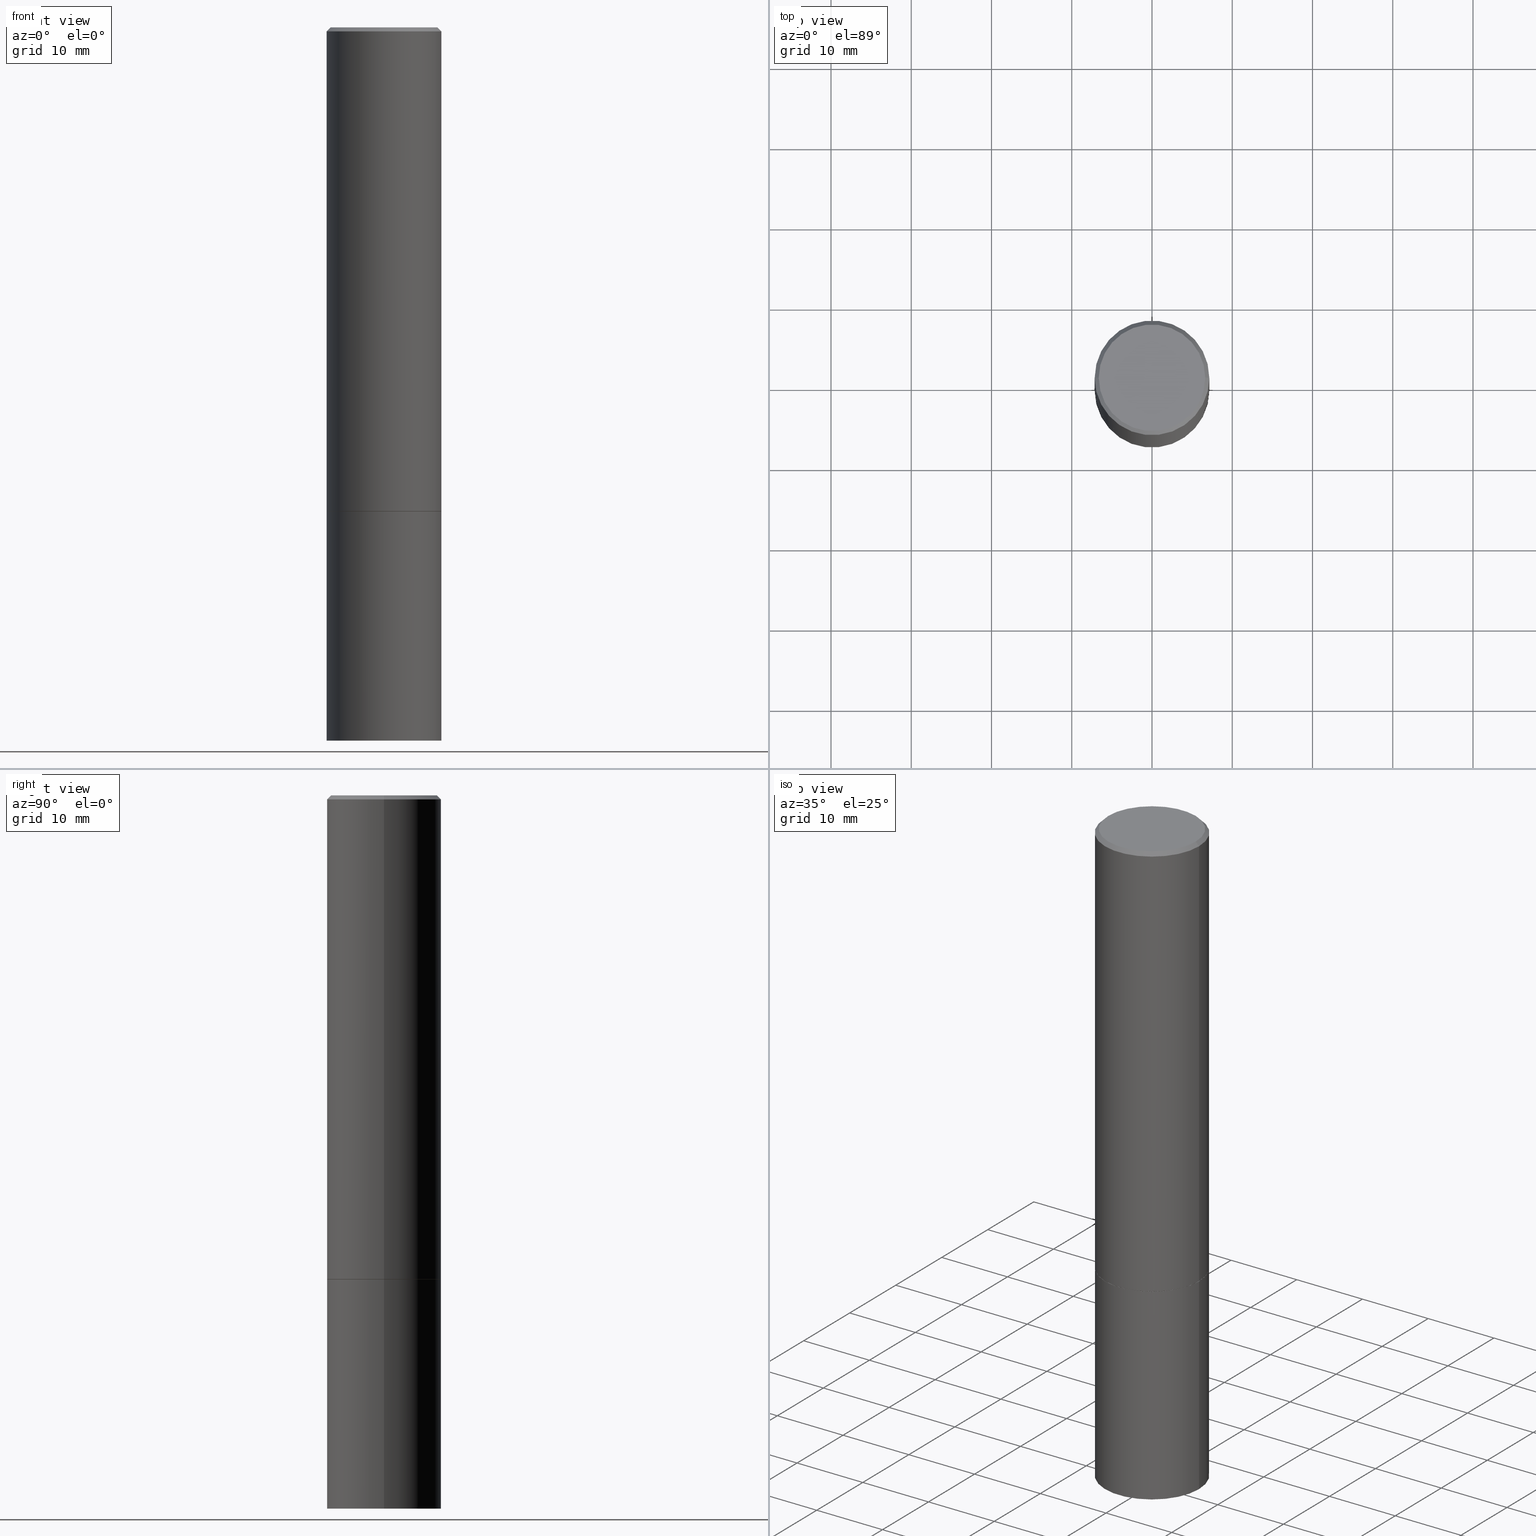
[diagram: canonical four-view strip — front | top / right | iso, engineering-drawing reading convention]
A machine part, canonical four-view strip (front | top / right | iso — engineering-drawing reading convention). The complete STEP part file that produces these views, byte-faithful:
ISO-10303-21;
HEADER;
FILE_DESCRIPTION (( 'STEP AP203' ),
    '1' );
FILE_NAME ('36436.STEP',
    '2024-02-27T19:25:09',
    ( '' ),
    ( '' ),
    'SwSTEP 2.0',
    'SolidWorks 2023',
    '' );
FILE_SCHEMA (( 'CONFIG_CONTROL_DESIGN' ));
ENDSEC;

DATA;
#1 = EDGE_CURVE ( 'NONE', #129, #296, #18, .T. ) ;
#2 = DIRECTION ( 'NONE',  ( -2.445468806185136597E-29, 3.491481338843145583E-15, 1.000000000000000000 ) ) ;
#3 = PERSON_AND_ORGANIZATION_ROLE ( 'creator' ) ;
#4 = DIMENSIONAL_EXPONENTS ( 1.000000000000000000, 0.000000000000000000, 0.000000000000000000, 0.000000000000000000, 0.000000000000000000, 0.000000000000000000, 0.000000000000000000 ) ;
#5 = DIRECTION ( 'NONE',  ( 1.000000000000000000, -6.982962677686268288E-15, 0.000000000000000000 ) ) ;
#6 = DIRECTION ( 'NONE',  ( 1.000000000000000000, -6.982962677686269866E-15, 0.000000000000000000 ) ) ;
#7 = APPROVAL_ROLE ( '' ) ;
#8 = LOCAL_TIME ( 14, 25, 9.000000000000000000, #352 ) ;
#9 = AXIS2_PLACEMENT_3D ( 'NONE', #343, #88, #317 ) ;
#10 = ORIENTED_EDGE ( 'NONE', *, *, #96, .T. ) ;
#11 = CONICAL_SURFACE ( 'NONE', #144, 0.2812499999999996114, 0.7853981633974471688 ) ;
#12 = ORIENTED_EDGE ( 'NONE', *, *, #286, .F. ) ;
#13 = EDGE_CURVE ( 'NONE', #333, #43, #327, .T. ) ;
#14 = VERTEX_POINT ( 'NONE', #52 ) ;
#15 = PERSON_AND_ORGANIZATION_ROLE ( 'creator' ) ;
#16 = DIRECTION ( 'NONE',  ( 1.000000000000000000, -6.982962677686269866E-15, 0.000000000000000000 ) ) ;
#17 = CARTESIAN_POINT ( 'NONE',  ( 1.963958253099348104E-15, 0.2812499999999877875, -3.500000000000000888 ) ) ;
#18 = CIRCLE ( 'NONE', #288, 0.2812499999999996114 ) ;
#19 = PRODUCT_DEFINITION_FORMATION_WITH_SPECIFIED_SOURCE ( 'ANY', '', #168, .NOT_KNOWN. ) ;
#20 = DIRECTION ( 'NONE',  ( -2.445468806185136597E-29, 3.491481338843145583E-15, 1.000000000000000000 ) ) ;
#21 = CARTESIAN_POINT ( 'NONE',  ( 0.2812500000000000000, -1.418414293905027264E-14, -3.500000000000000000 ) ) ;
#22 = CYLINDRICAL_SURFACE ( 'NONE', #328, 0.2812500000000000000 ) ;
#23 = DIRECTION ( 'NONE',  ( 0.7071067811866320607, -2.468850131083142557E-15, 0.7071067811864629737 ) ) ;
#24 = ORIENTED_EDGE ( 'NONE', *, *, #192, .T. ) ;
#25 = DIRECTION ( 'NONE',  ( -1.000000000000000000, 6.982962677686268288E-15, 0.000000000000000000 ) ) ;
#26 = EDGE_LOOP ( 'NONE', ( #12, #324 ) ) ;
#27 = CALENDAR_DATE ( 2024, 27, 2 ) ;
#28 = PERSON_AND_ORGANIZATION ( #99, #172 ) ;
#29 = ADVANCED_FACE ( 'NONE', ( #161 ), #271, .T. ) ;
#30 = DIRECTION ( 'NONE',  ( 1.000000000000000000, -6.982962677686269866E-15, 0.000000000000000000 ) ) ;
#31 = COORDINATED_UNIVERSAL_TIME_OFFSET ( 5, 0, .BEHIND. ) ;
#32 = CARTESIAN_POINT ( 'NONE',  ( 5.807988414689697175E-29, -8.292268179752466962E-15, -2.374999999999999112 ) ) ;
#33 = VERTEX_POINT ( 'NONE', #21 ) ;
#34 = CARTESIAN_POINT ( 'NONE',  ( 8.559140821647976968E-29, -1.222018468595100934E-14, -3.500000000000000000 ) ) ;
#35 = ADVANCED_BREP_SHAPE_REPRESENTATION ( '36436', ( #107, #117, #87 ), #249 ) ;
#36 = VERTEX_POINT ( 'NONE', #135 ) ;
#37 = DIRECTION ( 'NONE',  ( 1.000000000000000000, -6.982962677686266711E-15, 4.876176775795935793E-29 ) ) ;
#38 = CARTESIAN_POINT ( 'NONE',  ( 0.2802499999999999991, -1.024924347017404425E-14, -2.374999999999999112 ) ) ;
#39 = CONICAL_SURFACE ( 'NONE', #265, 0.2812499999999996114, 0.7853981633974471688 ) ;
#40 = EDGE_LOOP ( 'NONE', ( #90, #182, #337, #230 ) ) ;
#41 = AXIS2_PLACEMENT_3D ( 'NONE', #262, #146, #37 ) ;
#42 = ADVANCED_FACE ( 'NONE', ( #243 ), #70, .T. ) ;
#43 = VERTEX_POINT ( 'NONE', #184 ) ;
#44 = DIRECTION ( 'NONE',  ( 1.000000000000000000, -6.982962677686266711E-15, 4.876176775795935793E-29 ) ) ;
#45 = PERSON_AND_ORGANIZATION ( #99, #172 ) ;
#46 = CARTESIAN_POINT ( 'NONE',  ( 4.890937612370292426E-31, -6.982962677686317493E-17, -0.02000000000000007674 ) ) ;
#47 = EDGE_LOOP ( 'NONE', ( #153, #73, #148, #97 ) ) ;
#48 = CIRCLE ( 'NONE', #9, 0.2812500000000000555 ) ;
#49 = EDGE_LOOP ( 'NONE', ( #105, #235 ) ) ;
#50 = ADVANCED_FACE ( 'NONE', ( #160 ), #39, .T. ) ;
#51 = DIRECTION ( 'NONE',  ( 1.000000000000000000, -6.982962677686266711E-15, 4.876176775795935793E-29 ) ) ;
#52 = CARTESIAN_POINT ( 'NONE',  ( 0.2802499999999999991, -1.024924347017404425E-14, -2.374999999999999112 ) ) ;
#53 = DIRECTION ( 'NONE',  ( -2.445468806185136597E-29, 3.491481338843145583E-15, 1.000000000000000000 ) ) ;
#54 = CARTESIAN_POINT ( 'NONE',  ( 0.2612499999999995937, -1.895824895283956809E-15, 1.300802449975685690E-29 ) ) ;
#55 = APPROVAL_PERSON_ORGANIZATION ( #125, #269, #234 ) ;
#56 = CARTESIAN_POINT ( 'NONE',  ( 1.824298999545534338E-15, 0.2612499999999995937, -9.121494997727705218E-16 ) ) ;
#57 = EDGE_CURVE ( 'NONE', #180, #100, #61, .T. ) ;
#58 = CC_DESIGN_PERSON_AND_ORGANIZATION_ASSIGNMENT ( #341, #15, ( #357 ) ) ;
#59 = CARTESIAN_POINT ( 'NONE',  ( 4.890937612370292426E-31, -6.982962677686317493E-17, -0.02000000000000007674 ) ) ;
#60 = DIRECTION ( 'NONE',  ( -2.445468806185136597E-29, 3.491481338843145583E-15, 1.000000000000000000 ) ) ;
#61 = CIRCLE ( 'NONE', #142, 0.2612499999999995937 ) ;
#62 = CONICAL_SURFACE ( 'NONE', #94, 0.2802499999999999991, 0.7853981633975678500 ) ;
#63 = DATE_AND_TIME ( #345, #66 ) ;
#64 = FACE_OUTER_BOUND ( 'NONE', #26, .T. ) ;
#65 = ADVANCED_FACE ( 'NONE', ( #285 ), #145, .T. ) ;
#66 = LOCAL_TIME ( 14, 25, 9.000000000000000000, #175 ) ;
#67 = DIRECTION ( 'NONE',  ( -2.445468806185136597E-29, 3.491481338843145583E-15, 1.000000000000000000 ) ) ;
#68 = ORIENTED_EDGE ( 'NONE', *, *, #244, .T. ) ;
#69 = EDGE_CURVE ( 'NONE', #333, #296, #84, .T. ) ;
#70 = CONICAL_SURFACE ( 'NONE', #131, 0.2802499999999999991, 0.7853981633975678500 ) ;
#71 = VECTOR ( 'NONE', #199, 39.37007874015748143 ) ;
#72 = CARTESIAN_POINT ( 'NONE',  ( 0.2812499999999996114, -1.999344688650103789E-15, -0.02000000000000007674 ) ) ;
#73 = ORIENTED_EDGE ( 'NONE', *, *, #69, .T. ) ;
#74 = PERSON_AND_ORGANIZATION ( #99, #172 ) ;
#75 = ORIENTED_EDGE ( 'NONE', *, *, #57, .F. ) ;
#76 = EDGE_CURVE ( 'NONE', #43, #333, #48, .T. ) ;
#77 = ORIENTED_EDGE ( 'NONE', *, *, #13, .T. ) ;
#78 = CARTESIAN_POINT ( 'NONE',  ( 5.805542945883512693E-29, -8.288776698413625533E-15, -2.373999999999999222 ) ) ;
#79 = ORIENTED_EDGE ( 'NONE', *, *, #123, .T. ) ;
#80 = CALENDAR_DATE ( 2024, 27, 2 ) ;
#81 = EDGE_CURVE ( 'NONE', #296, #129, #304, .T. ) ;
#82 = PLANE ( 'NONE',  #351 ) ;
#83 = CC_DESIGN_APPROVAL ( #196, ( #315 ) ) ;
#84 = LINE ( 'NONE', #254, #121 ) ;
#85 = CALENDAR_DATE ( 2024, 27, 2 ) ;
#86 = AXIS2_PLACEMENT_3D ( 'NONE', #344, #334, #51 ) ;
#87 = AXIS2_PLACEMENT_3D ( 'NONE', #176, #226, #326 ) ;
#88 = DIRECTION ( 'NONE',  ( -2.445468806185136597E-29, 3.491481338843145583E-15, 1.000000000000000000 ) ) ;
#89 = CARTESIAN_POINT ( 'NONE',  ( 0.2812499999999996114, -1.999344688650103789E-15, -0.02000000000000007674 ) ) ;
#90 = ORIENTED_EDGE ( 'NONE', *, *, #96, .F. ) ;
#91 = APPROVAL_STATUS ( 'not_yet_approved' ) ;
#92 = LINE ( 'NONE', #169, #71 ) ;
#93 = CARTESIAN_POINT ( 'NONE',  ( 0.2812500000000000000, -1.025622643285173184E-14, -2.374999999999999556 ) ) ;
#94 = AXIS2_PLACEMENT_3D ( 'NONE', #287, #67, #174 ) ;
#95 = ORIENTED_EDGE ( 'NONE', *, *, #267, .T. ) ;
#96 = EDGE_CURVE ( 'NONE', #36, #333, #195, .T. ) ;
#97 = ORIENTED_EDGE ( 'NONE', *, *, #150, .F. ) ;
#98 = LINE ( 'NONE', #72, #336 ) ;
#99 = PERSON ( 'UNSPECIFIED', 'UNSPECIFIED', 'UNSPECIFIED', ('UNSPECIFIED'), ('UNSPECIFIED'), ('UNSPECIFIED') ) ;
#100 = VERTEX_POINT ( 'NONE', #219 ) ;
#101 = PERSON_AND_ORGANIZATION_ROLE ( 'design_supplier' ) ;
#102 = CARTESIAN_POINT ( 'NONE',  ( -0.2812500000000000000, 1.998401444325281773E-15, -1.383450494134192269E-29 ) ) ;
#103 = EDGE_LOOP ( 'NONE', ( #331, #10, #319, #359 ) ) ;
#104 = ADVANCED_FACE ( 'NONE', ( #189 ), #167, .T. ) ;
#105 = ORIENTED_EDGE ( 'NONE', *, *, #267, .F. ) ;
#106 = DIRECTION ( 'NONE',  ( 1.000000000000000000, -6.982962677686265922E-15, 4.876176775795935793E-29 ) ) ;
#107 = MANIFOLD_SOLID_BREP ( 'Body-Move/Copy2[1]', #260 ) ;
#108 = CC_DESIGN_DATE_AND_TIME_ASSIGNMENT ( #63, #225, ( #315 ) ) ;
#109 = ORIENTED_EDGE ( 'NONE', *, *, #229, .T. ) ;
#110 = AXIS2_PLACEMENT_3D ( 'NONE', #59, #2, #5 ) ;
#111 = CC_DESIGN_APPROVAL ( #269, ( #357 ) ) ;
#112 = DIRECTION ( 'NONE',  ( -1.000000000000000000, 6.982962677686265922E-15, -4.876176775795935793E-29 ) ) ;
#113 = EDGE_LOOP ( 'NONE', ( #137, #349, #79, #339 ) ) ;
#114 = CARTESIAN_POINT ( 'NONE',  ( 5.807988414689698296E-29, -8.292268179752468540E-15, -2.374999999999999556 ) ) ;
#115 = DATE_TIME_ROLE ( 'creation_date' ) ;
#116 = PRODUCT_DEFINITION_SHAPE ( 'NONE', 'NONE',  #357 ) ;
#117 = MANIFOLD_SOLID_BREP ( 'Body-Move/Copy2[2]', #231 ) ;
#118 = CARTESIAN_POINT ( 'NONE',  ( -0.2802499999999999991, -6.300972162784786987E-15, -2.374999999999999112 ) ) ;
#119 = DIRECTION ( 'NONE',  ( 1.000000000000000000, -6.982962677686266711E-15, 4.876176775795935793E-29 ) ) ;
#120 = SHAPE_DEFINITION_REPRESENTATION ( #116, #35 ) ;
#121 = VECTOR ( 'NONE', #251, 39.37007874015748143 ) ;
#122 = AXIS2_PLACEMENT_3D ( 'NONE', #114, #342, #185 ) ;
#123 = EDGE_CURVE ( 'NONE', #100, #296, #268, .T. ) ;
#124 = AXIS2_PLACEMENT_3D ( 'NONE', #257, #281, #282 ) ;
#125 = PERSON_AND_ORGANIZATION ( #99, #172 ) ;
#126 = LOCAL_TIME ( 14, 25, 9.000000000000000000, #297 ) ;
#127 = ORIENTED_EDGE ( 'NONE', *, *, #69, .F. ) ;
#128 = PERSON_AND_ORGANIZATION ( #99, #172 ) ;
#129 = VERTEX_POINT ( 'NONE', #89 ) ;
#130 = PLANE ( 'NONE',  #183 ) ;
#131 = AXIS2_PLACEMENT_3D ( 'NONE', #361, #274, #212 ) ;
#132 = LOCAL_TIME ( 14, 25, 9.000000000000000000, #310 ) ;
#133 = ADVANCED_FACE ( 'NONE', ( #64 ), #316, .F. ) ;
#134 = CARTESIAN_POINT ( 'NONE',  ( 5.807988414689697175E-29, -8.292268179752466962E-15, -2.374999999999999112 ) ) ;
#135 = CARTESIAN_POINT ( 'NONE',  ( -0.2802499999999999991, -6.295673708436564585E-15, -2.374999999999999112 ) ) ;
#136 = UNCERTAINTY_MEASURE_WITH_UNIT (LENGTH_MEASURE( 1.000000000000000082E-05 ), #323, 'distance_accuracy_value', 'NONE');
#137 = ORIENTED_EDGE ( 'NONE', *, *, #147, .F. ) ;
#138 = DIRECTION ( 'NONE',  ( 2.438088387897960049E-29, -3.491481338843145188E-15, -1.000000000000000000 ) ) ;
#139 = CARTESIAN_POINT ( 'NONE',  ( 4.890937612370292426E-31, -6.982962677686317493E-17, -0.02000000000000007674 ) ) ;
#140 = CC_DESIGN_APPROVAL ( #280, ( #19 ) ) ;
#141 = DATE_AND_TIME ( #27, #132 ) ;
#142 = AXIS2_PLACEMENT_3D ( 'NONE', #238, #60, #119 ) ;
#143 = APPROVAL_ROLE ( '' ) ;
#144 = AXIS2_PLACEMENT_3D ( 'NONE', #216, #354, #25 ) ;
#145 = CYLINDRICAL_SURFACE ( 'NONE', #124, 0.2812499999999998335 ) ;
#146 = DIRECTION ( 'NONE',  ( -2.445468806185136597E-29, 3.491481338843145583E-15, 1.000000000000000000 ) ) ;
#147 = EDGE_CURVE ( 'NONE', #180, #129, #98, .T. ) ;
#148 = ORIENTED_EDGE ( 'NONE', *, *, #1, .F. ) ;
#149 =( NAMED_UNIT ( * ) PLANE_ANGLE_UNIT ( ) SI_UNIT ( $, .RADIAN. ) );
#150 = EDGE_CURVE ( 'NONE', #43, #129, #277, .T. ) ;
#151 = CIRCLE ( 'NONE', #295, 0.2812500000000000000 ) ;
#152 = APPROVAL_PERSON_ORGANIZATION ( #259, #196, #7 ) ;
#153 = ORIENTED_EDGE ( 'NONE', *, *, #76, .T. ) ;
#154 = FACE_OUTER_BOUND ( 'NONE', #291, .T. ) ;
#155 = DIRECTION ( 'NONE',  ( -2.445468806185136597E-29, 3.491481338843145583E-15, 1.000000000000000000 ) ) ;
#156 = DESIGN_CONTEXT ( 'detailed design', #197, 'design' ) ;
#157 = DIRECTION ( 'NONE',  ( 1.000000000000000000, -6.982962677686269077E-15, 0.000000000000000000 ) ) ;
#158 = ORIENTED_EDGE ( 'NONE', *, *, #81, .F. ) ;
#159 = CARTESIAN_POINT ( 'NONE',  ( -0.2812499999999996114, 1.894128626322396848E-15, -0.02000000000000007674 ) ) ;
#160 = FACE_OUTER_BOUND ( 'NONE', #329, .T. ) ;
#161 = FACE_OUTER_BOUND ( 'NONE', #49, .T. ) ;
#162 = DIRECTION ( 'NONE',  ( -0.7071067811866320607, 7.493145998870660238E-15, 0.7071067811864629737 ) ) ;
#163 = CIRCLE ( 'NONE', #122, 0.2812500000000000000 ) ;
#164 = DIRECTION ( 'NONE',  ( -2.445468806185136597E-29, 3.491481338843145583E-15, 1.000000000000000000 ) ) ;
#165 = DIRECTION ( 'NONE',  ( 2.438088387897960049E-29, -3.491481338843145188E-15, -1.000000000000000000 ) ) ;
#166 = CYLINDRICAL_SURFACE ( 'NONE', #86, 0.2812499999999998335 ) ;
#167 = CYLINDRICAL_SURFACE ( 'NONE', #350, 0.2812500000000000000 ) ;
#168 = PRODUCT ( '36436', '36436', '', ( #261 ) ) ;
#169 = CARTESIAN_POINT ( 'NONE',  ( 0.2812500000000000000, -1.963958253099262512E-15, 1.371424718192607012E-29 ) ) ;
#170 = ADVANCED_FACE ( 'NONE', ( #366 ), #166, .T. ) ;
#171 = ORIENTED_EDGE ( 'NONE', *, *, #229, .F. ) ;
#172 = ORGANIZATION ( 'UNSPECIFIED', 'UNSPECIFIED', '' ) ;
#173 = APPLICATION_PROTOCOL_DEFINITION ( 'international standard', 'config_control_design', 1994, #318 ) ;
#174 = DIRECTION ( 'NONE',  ( 1.000000000000000000, -6.982962677686269077E-15, 0.000000000000000000 ) ) ;
#175 = COORDINATED_UNIVERSAL_TIME_OFFSET ( 5, 0, .BEHIND. ) ;
#176 = CARTESIAN_POINT ( 'NONE',  ( 0.000000000000000000, 0.000000000000000000, 0.000000000000000000 ) ) ;
#177 = ORIENTED_EDGE ( 'NONE', *, *, #123, .F. ) ;
#178 = DIRECTION ( 'NONE',  ( 0.7071067811865466846, -7.319954787623252890E-15, -0.7071067811865483499 ) ) ;
#179 = FACE_OUTER_BOUND ( 'NONE', #306, .T. ) ;
#180 = VERTEX_POINT ( 'NONE', #54 ) ;
#181 = PERSON_AND_ORGANIZATION_ROLE ( 'classification_officer' ) ;
#182 = ORIENTED_EDGE ( 'NONE', *, *, #278, .T. ) ;
#183 = AXIS2_PLACEMENT_3D ( 'NONE', #308, #138, #112 ) ;
#184 = CARTESIAN_POINT ( 'NONE',  ( 0.2812500000000000555, -1.025273495151288883E-14, -2.373999999999999222 ) ) ;
#185 = DIRECTION ( 'NONE',  ( 1.000000000000000000, -6.982962677686269866E-15, 0.000000000000000000 ) ) ;
#186 = DIRECTION ( 'NONE',  ( 1.000000000000000000, -6.982962677686268288E-15, 0.000000000000000000 ) ) ;
#187 = DIRECTION ( 'NONE',  ( 1.000000000000000000, -6.982962677686268288E-15, 0.000000000000000000 ) ) ;
#188 = DIRECTION ( 'NONE',  ( -2.445468806185136877E-29, 3.491481338843145188E-15, 1.000000000000000000 ) ) ;
#189 = FACE_OUTER_BOUND ( 'NONE', #299, .T. ) ;
#190 = AXIS2_PLACEMENT_3D ( 'NONE', #134, #20, #303 ) ;
#191 = VECTOR ( 'NONE', #23, 39.37007874015748143 ) ;
#192 = EDGE_CURVE ( 'NONE', #264, #33, #151, .T. ) ;
#193 = AXIS2_PLACEMENT_3D ( 'NONE', #34, #203, #30 ) ;
#194 = DIRECTION ( 'NONE',  ( -0.7071067811865466846, 2.468850131082247989E-15, -0.7071067811865483499 ) ) ;
#195 = LINE ( 'NONE', #118, #221 ) ;
#196 = APPROVAL ( #91, 'UNSPECIFIED' ) ;
#197 = APPLICATION_CONTEXT ( 'configuration controlled 3d designs of mechanical parts and assemblies' ) ;
#198 = CARTESIAN_POINT ( 'NONE',  ( 0.000000000000000000, 0.000000000000000000, 0.000000000000000000 ) ) ;
#199 = DIRECTION ( 'NONE',  ( -2.445468806185136877E-29, 3.491481338843145188E-15, 1.000000000000000000 ) ) ;
#200 = DATE_AND_TIME ( #85, #209 ) ;
#201 = LENGTH_MEASURE_WITH_UNIT ( LENGTH_MEASURE( 0.02539999999999999897 ), #320 );
#202 = EDGE_CURVE ( 'NONE', #14, #43, #364, .T. ) ;
#203 = DIRECTION ( 'NONE',  ( -2.445468806185136597E-29, 3.491481338843145583E-15, 1.000000000000000000 ) ) ;
#204 = ORIENTED_EDGE ( 'NONE', *, *, #57, .T. ) ;
#205 = CALENDAR_DATE ( 2024, 27, 2 ) ;
#206 = PRODUCT_RELATED_PRODUCT_CATEGORY ( 'detail', '', ( #168 ) ) ;
#207 = CARTESIAN_POINT ( 'NONE',  ( 5.807988414689698296E-29, -8.292268179752468540E-15, -2.374999999999999556 ) ) ;
#208 = EDGE_CURVE ( 'NONE', #356, #215, #266, .T. ) ;
#209 = LOCAL_TIME ( 14, 25, 9.000000000000000000, #31 ) ;
#210 = ORIENTED_EDGE ( 'NONE', *, *, #147, .T. ) ;
#211 = EDGE_LOOP ( 'NONE', ( #218, #204 ) ) ;
#212 = DIRECTION ( 'NONE',  ( 1.000000000000000000, -6.982962677686269077E-15, 0.000000000000000000 ) ) ;
#213 = CARTESIAN_POINT ( 'NONE',  ( 0.000000000000000000, 0.000000000000000000, 0.000000000000000000 ) ) ;
#214 = EDGE_CURVE ( 'NONE', #264, #215, #240, .T. ) ;
#215 = VERTEX_POINT ( 'NONE', #245 ) ;
#216 = CARTESIAN_POINT ( 'NONE',  ( 4.890937612370292426E-31, -6.982962677686317493E-17, -0.02000000000000007674 ) ) ;
#217 = FACE_OUTER_BOUND ( 'NONE', #211, .T. ) ;
#218 = ORIENTED_EDGE ( 'NONE', *, *, #347, .T. ) ;
#219 = CARTESIAN_POINT ( 'NONE',  ( -0.2612499999999995937, 1.859213812933965593E-15, -1.288019758893701069E-29 ) ) ;
#220 = DIRECTION ( 'NONE',  ( -1.000000000000000000, 6.982962677686265922E-15, -4.876176775795935793E-29 ) ) ;
#221 = VECTOR ( 'NONE', #162, 39.37007874015748143 ) ;
#222 = CIRCLE ( 'NONE', #190, 0.2802499999999999991 ) ;
#223 = CARTESIAN_POINT ( 'NONE',  ( -0.2812499999999996114, 1.894128626322396848E-15, -0.02000000000000007674 ) ) ;
#224 = VECTOR ( 'NONE', #188, 39.37007874015748143 ) ;
#225 = DATE_TIME_ROLE ( 'classification_date' ) ;
#226 = DIRECTION ( 'NONE',  ( 0.000000000000000000, 0.000000000000000000, 1.000000000000000000 ) ) ;
#227 = DIRECTION ( 'NONE',  ( 1.000000000000000000, -6.982962677686266711E-15, 4.876176775795935793E-29 ) ) ;
#228 = ORIENTED_EDGE ( 'NONE', *, *, #150, .T. ) ;
#229 = EDGE_CURVE ( 'NONE', #215, #356, #163, .T. ) ;
#230 = ORIENTED_EDGE ( 'NONE', *, *, #13, .F. ) ;
#231 = CLOSED_SHELL ( 'NONE', ( #258, #170, #50, #300, #65, #42, #133, #236 ) ) ;
#232 = CIRCLE ( 'NONE', #41, 0.2612499999999995937 ) ;
#233 = CC_DESIGN_PERSON_AND_ORGANIZATION_ASSIGNMENT ( #239, #3, ( #19 ) ) ;
#234 = APPROVAL_ROLE ( '' ) ;
#235 = ORIENTED_EDGE ( 'NONE', *, *, #192, .F. ) ;
#236 = ADVANCED_FACE ( 'NONE', ( #217 ), #82, .F. ) ;
#237 = APPLICATION_PROTOCOL_DEFINITION ( 'international standard', 'config_control_design', 1994, #197 ) ;
#238 = CARTESIAN_POINT ( 'NONE',  ( 0.000000000000000000, 0.000000000000000000, 0.000000000000000000 ) ) ;
#239 = PERSON_AND_ORGANIZATION ( #99, #172 ) ;
#240 = LINE ( 'NONE', #102, #322 ) ;
#241 = ORIENTED_EDGE ( 'NONE', *, *, #208, .T. ) ;
#242 = DIRECTION ( 'NONE',  ( -2.445468806185136597E-29, 3.491481338843145583E-15, 1.000000000000000000 ) ) ;
#243 = FACE_OUTER_BOUND ( 'NONE', #40, .T. ) ;
#244 = EDGE_CURVE ( 'NONE', #33, #356, #92, .T. ) ;
#245 = CARTESIAN_POINT ( 'NONE',  ( -0.2812500000000000000, -8.257824988526456379E-15, -2.374999999999999556 ) ) ;
#246 = ORIENTED_EDGE ( 'NONE', *, *, #1, .T. ) ;
#247 = CARTESIAN_POINT ( 'NONE',  ( 8.559140821647976968E-29, -1.222018468595100934E-14, -3.500000000000000000 ) ) ;
#248 = AXIS2_PLACEMENT_3D ( 'NONE', #32, #302, #106 ) ;
#249 =( GEOMETRIC_REPRESENTATION_CONTEXT ( 3 ) GLOBAL_UNCERTAINTY_ASSIGNED_CONTEXT ( ( #136 ) ) GLOBAL_UNIT_ASSIGNED_CONTEXT ( ( #323, #149, #292 ) ) REPRESENTATION_CONTEXT ( 'NONE', 'WORKASPACE' ) );
#250 = DIRECTION ( 'NONE',  ( 2.445468806185136597E-29, -3.491481338843145583E-15, -1.000000000000000000 ) ) ;
#251 = DIRECTION ( 'NONE',  ( -2.445468806185136877E-29, 3.491481338843145188E-15, 1.000000000000000000 ) ) ;
#252 = CC_DESIGN_PERSON_AND_ORGANIZATION_ASSIGNMENT ( #128, #293, ( #168 ) ) ;
#253 = APPROVAL_DATE_TIME ( #312, #269 ) ;
#254 = CARTESIAN_POINT ( 'NONE',  ( -0.2812499999999998335, 1.998401444325280589E-15, -1.383450494134191428E-29 ) ) ;
#255 = APPROVAL_DATE_TIME ( #141, #280 ) ;
#256 = VECTOR ( 'NONE', #194, 39.37007874015748143 ) ;
#257 = CARTESIAN_POINT ( 'NONE',  ( 0.000000000000000000, 0.000000000000000000, 0.000000000000000000 ) ) ;
#258 = ADVANCED_FACE ( 'NONE', ( #321 ), #62, .T. ) ;
#259 = PERSON_AND_ORGANIZATION ( #99, #172 ) ;
#260 = CLOSED_SHELL ( 'NONE', ( #104, #29, #325, #313 ) ) ;
#261 = MECHANICAL_CONTEXT ( 'NONE', #318, 'mechanical' ) ;
#262 = CARTESIAN_POINT ( 'NONE',  ( 0.000000000000000000, 0.000000000000000000, 0.000000000000000000 ) ) ;
#263 = DIRECTION ( 'NONE',  ( -2.445468806185136597E-29, 3.491481338843145583E-15, 1.000000000000000000 ) ) ;
#264 = VERTEX_POINT ( 'NONE', #290 ) ;
#265 = AXIS2_PLACEMENT_3D ( 'NONE', #139, #250, #365 ) ;
#266 = CIRCLE ( 'NONE', #346, 0.2812500000000000000 ) ;
#267 = EDGE_CURVE ( 'NONE', #33, #264, #279, .T. ) ;
#268 = LINE ( 'NONE', #223, #256 ) ;
#269 = APPROVAL ( #355, 'UNSPECIFIED' ) ;
#270 = EDGE_LOOP ( 'NONE', ( #127, #77, #228, #158 ) ) ;
#271 = PLANE ( 'NONE',  #311 ) ;
#272 = ORIENTED_EDGE ( 'NONE', *, *, #214, .T. ) ;
#273 = FACE_OUTER_BOUND ( 'NONE', #113, .T. ) ;
#274 = DIRECTION ( 'NONE',  ( -2.445468806185136597E-29, 3.491481338843145583E-15, 1.000000000000000000 ) ) ;
#275 = CC_DESIGN_DATE_AND_TIME_ASSIGNMENT ( #360, #115, ( #357 ) ) ;
#276 = DIRECTION ( 'NONE',  ( -1.000000000000000000, 6.982962677686265922E-15, -4.876176775795935793E-29 ) ) ;
#277 = LINE ( 'NONE', #307, #224 ) ;
#278 = EDGE_CURVE ( 'NONE', #36, #14, #358, .T. ) ;
#279 = CIRCLE ( 'NONE', #193, 0.2812500000000000000 ) ;
#280 = APPROVAL ( #283, 'UNSPECIFIED' ) ;
#281 = DIRECTION ( 'NONE',  ( -2.445468806185136597E-29, 3.491481338843145583E-15, 1.000000000000000000 ) ) ;
#282 = DIRECTION ( 'NONE',  ( 1.000000000000000000, -6.982962677686266711E-15, 4.876176775795935793E-29 ) ) ;
#283 = APPROVAL_STATUS ( 'not_yet_approved' ) ;
#284 = AXIS2_PLACEMENT_3D ( 'NONE', #78, #155, #186 ) ;
#285 = FACE_OUTER_BOUND ( 'NONE', #270, .T. ) ;
#286 = EDGE_CURVE ( 'NONE', #14, #36, #222, .T. ) ;
#287 = CARTESIAN_POINT ( 'NONE',  ( 5.807988414689697175E-29, -8.292268179752466962E-15, -2.374999999999999112 ) ) ;
#288 = AXIS2_PLACEMENT_3D ( 'NONE', #46, #53, #187 ) ;
#289 = APPROVAL_PERSON_ORGANIZATION ( #28, #280, #143 ) ;
#290 = CARTESIAN_POINT ( 'NONE',  ( -0.2812500000000000000, -8.257824988526456379E-15, -3.500000000000000000 ) ) ;
#291 = EDGE_LOOP ( 'NONE', ( #241, #109 ) ) ;
#292 =( NAMED_UNIT ( * ) SI_UNIT ( $, .STERADIAN. ) SOLID_ANGLE_UNIT ( ) );
#293 = PERSON_AND_ORGANIZATION_ROLE ( 'design_owner' ) ;
#294 = CARTESIAN_POINT ( 'NONE',  ( 5.807988414689697175E-29, -8.292268179752466962E-15, -2.374999999999999112 ) ) ;
#295 = AXIS2_PLACEMENT_3D ( 'NONE', #247, #164, #6 ) ;
#296 = VERTEX_POINT ( 'NONE', #159 ) ;
#297 = COORDINATED_UNIVERSAL_TIME_OFFSET ( 5, 0, .BEHIND. ) ;
#298 = DIRECTION ( 'NONE',  ( -2.445468806185136597E-29, 3.491481338843145583E-15, 1.000000000000000000 ) ) ;
#299 = EDGE_LOOP ( 'NONE', ( #95, #272, #348, #362 ) ) ;
#300 = ADVANCED_FACE ( 'NONE', ( #273 ), #11, .T. ) ;
#301 = DIRECTION ( 'NONE',  ( 2.438088387897960049E-29, -3.491481338843145188E-15, -1.000000000000000000 ) ) ;
#302 = DIRECTION ( 'NONE',  ( -2.438088387897960049E-29, 3.491481338843145188E-15, 1.000000000000000000 ) ) ;
#303 = DIRECTION ( 'NONE',  ( 1.000000000000000000, -6.982962677686269077E-15, 0.000000000000000000 ) ) ;
#304 = CIRCLE ( 'NONE', #110, 0.2812499999999996114 ) ;
#305 = AXIS2_PLACEMENT_3D ( 'NONE', #294, #242, #157 ) ;
#306 = EDGE_LOOP ( 'NONE', ( #309, #24, #68, #171 ) ) ;
#307 = CARTESIAN_POINT ( 'NONE',  ( 0.2812499999999998335, -1.963958253099261329E-15, 1.371424718192606171E-29 ) ) ;
#308 = CARTESIAN_POINT ( 'NONE',  ( 1.963958253099320494E-15, 0.2812499999999917288, -2.375000000000000444 ) ) ;
#309 = ORIENTED_EDGE ( 'NONE', *, *, #214, .F. ) ;
#310 = COORDINATED_UNIVERSAL_TIME_OFFSET ( 5, 0, .BEHIND. ) ;
#311 = AXIS2_PLACEMENT_3D ( 'NONE', #17, #301, #276 ) ;
#312 = DATE_AND_TIME ( #205, #8 ) ;
#313 = ADVANCED_FACE ( 'NONE', ( #179 ), #22, .T. ) ;
#314 = APPROVAL_DATE_TIME ( #200, #196 ) ;
#315 = SECURITY_CLASSIFICATION ( '', '', #330 ) ;
#316 = PLANE ( 'NONE',  #248 ) ;
#317 = DIRECTION ( 'NONE',  ( 1.000000000000000000, -6.982962677686268288E-15, 0.000000000000000000 ) ) ;
#318 = APPLICATION_CONTEXT ( 'configuration controlled 3d designs of mechanical parts and assemblies' ) ;
#319 = ORIENTED_EDGE ( 'NONE', *, *, #76, .F. ) ;
#320 =( LENGTH_UNIT ( ) NAMED_UNIT ( * ) SI_UNIT ( $, .METRE. ) );
#321 = FACE_OUTER_BOUND ( 'NONE', #103, .T. ) ;
#322 = VECTOR ( 'NONE', #353, 39.37007874015748143 ) ;
#323 =( CONVERSION_BASED_UNIT ( 'INCH', #201 ) LENGTH_UNIT ( ) NAMED_UNIT ( #4 ) );
#324 = ORIENTED_EDGE ( 'NONE', *, *, #278, .F. ) ;
#325 = ADVANCED_FACE ( 'NONE', ( #154 ), #130, .F. ) ;
#326 = DIRECTION ( 'NONE',  ( 1.000000000000000000, 0.000000000000000000, 0.000000000000000000 ) ) ;
#327 = CIRCLE ( 'NONE', #284, 0.2812500000000000555 ) ;
#328 = AXIS2_PLACEMENT_3D ( 'NONE', #213, #335, #44 ) ;
#329 = EDGE_LOOP ( 'NONE', ( #75, #210, #246, #177 ) ) ;
#330 = SECURITY_CLASSIFICATION_LEVEL ( 'unclassified' ) ;
#331 = ORIENTED_EDGE ( 'NONE', *, *, #286, .T. ) ;
#332 = CC_DESIGN_PERSON_AND_ORGANIZATION_ASSIGNMENT ( #45, #101, ( #19 ) ) ;
#333 = VERTEX_POINT ( 'NONE', #338 ) ;
#334 = DIRECTION ( 'NONE',  ( -2.445468806185136597E-29, 3.491481338843145583E-15, 1.000000000000000000 ) ) ;
#335 = DIRECTION ( 'NONE',  ( -2.445468806185136597E-29, 3.491481338843145583E-15, 1.000000000000000000 ) ) ;
#336 = VECTOR ( 'NONE', #178, 39.37007874015748143 ) ;
#337 = ORIENTED_EDGE ( 'NONE', *, *, #202, .T. ) ;
#338 = CARTESIAN_POINT ( 'NONE',  ( -0.2812500000000000000, -2.180901718269959487E-15, -2.373999999999999222 ) ) ;
#339 = ORIENTED_EDGE ( 'NONE', *, *, #81, .T. ) ;
#340 = CC_DESIGN_PERSON_AND_ORGANIZATION_ASSIGNMENT ( #74, #181, ( #315 ) ) ;
#341 = PERSON_AND_ORGANIZATION ( #99, #172 ) ;
#342 = DIRECTION ( 'NONE',  ( -2.445468806185136597E-29, 3.491481338843145583E-15, 1.000000000000000000 ) ) ;
#343 = CARTESIAN_POINT ( 'NONE',  ( 5.805542945883512693E-29, -8.288776698413625533E-15, -2.373999999999999222 ) ) ;
#344 = CARTESIAN_POINT ( 'NONE',  ( 0.000000000000000000, 0.000000000000000000, 0.000000000000000000 ) ) ;
#345 = CALENDAR_DATE ( 2024, 27, 2 ) ;
#346 = AXIS2_PLACEMENT_3D ( 'NONE', #207, #298, #16 ) ;
#347 = EDGE_CURVE ( 'NONE', #100, #180, #232, .T. ) ;
#348 = ORIENTED_EDGE ( 'NONE', *, *, #208, .F. ) ;
#349 = ORIENTED_EDGE ( 'NONE', *, *, #347, .F. ) ;
#350 = AXIS2_PLACEMENT_3D ( 'NONE', #198, #263, #227 ) ;
#351 = AXIS2_PLACEMENT_3D ( 'NONE', #56, #165, #220 ) ;
#352 = COORDINATED_UNIVERSAL_TIME_OFFSET ( 5, 0, .BEHIND. ) ;
#353 = DIRECTION ( 'NONE',  ( -2.445468806185136877E-29, 3.491481338843145188E-15, 1.000000000000000000 ) ) ;
#354 = DIRECTION ( 'NONE',  ( 2.445468806185136597E-29, -3.491481338843145583E-15, -1.000000000000000000 ) ) ;
#355 = APPROVAL_STATUS ( 'not_yet_approved' ) ;
#356 = VERTEX_POINT ( 'NONE', #93 ) ;
#357 = PRODUCT_DEFINITION ( 'UNKNOWN', '', #19, #156 ) ;
#358 = CIRCLE ( 'NONE', #305, 0.2802499999999999991 ) ;
#359 = ORIENTED_EDGE ( 'NONE', *, *, #202, .F. ) ;
#360 = DATE_AND_TIME ( #80, #126 ) ;
#361 = CARTESIAN_POINT ( 'NONE',  ( 5.807988414689697175E-29, -8.292268179752466962E-15, -2.374999999999999112 ) ) ;
#362 = ORIENTED_EDGE ( 'NONE', *, *, #244, .F. ) ;
#363 = CC_DESIGN_SECURITY_CLASSIFICATION ( #315, ( #19 ) ) ;
#364 = LINE ( 'NONE', #38, #191 ) ;
#365 = DIRECTION ( 'NONE',  ( -1.000000000000000000, 6.982962677686268288E-15, 0.000000000000000000 ) ) ;
#366 = FACE_OUTER_BOUND ( 'NONE', #47, .T. ) ;
ENDSEC;
END-ISO-10303-21;
